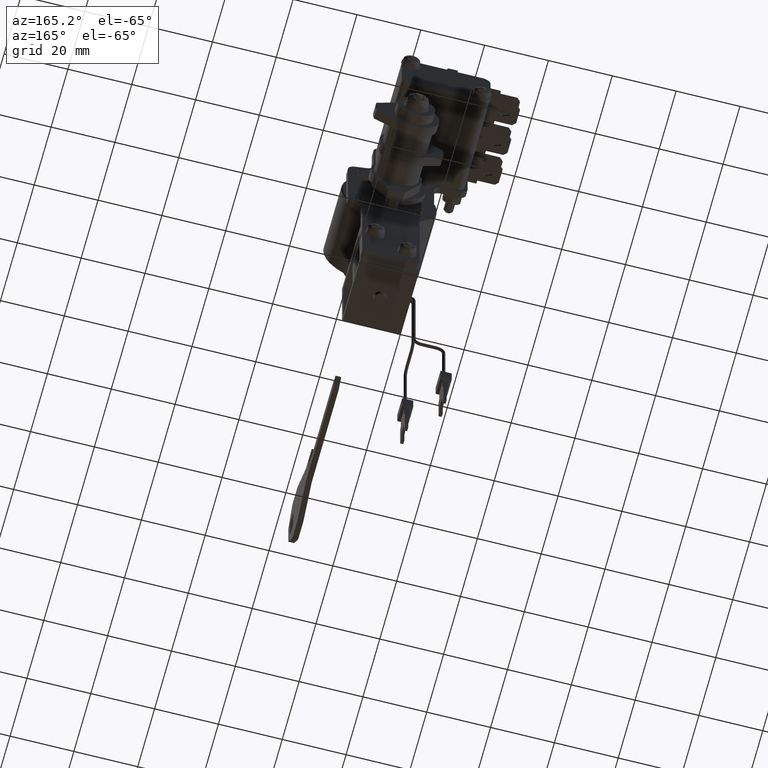
[diagram: clean part render]
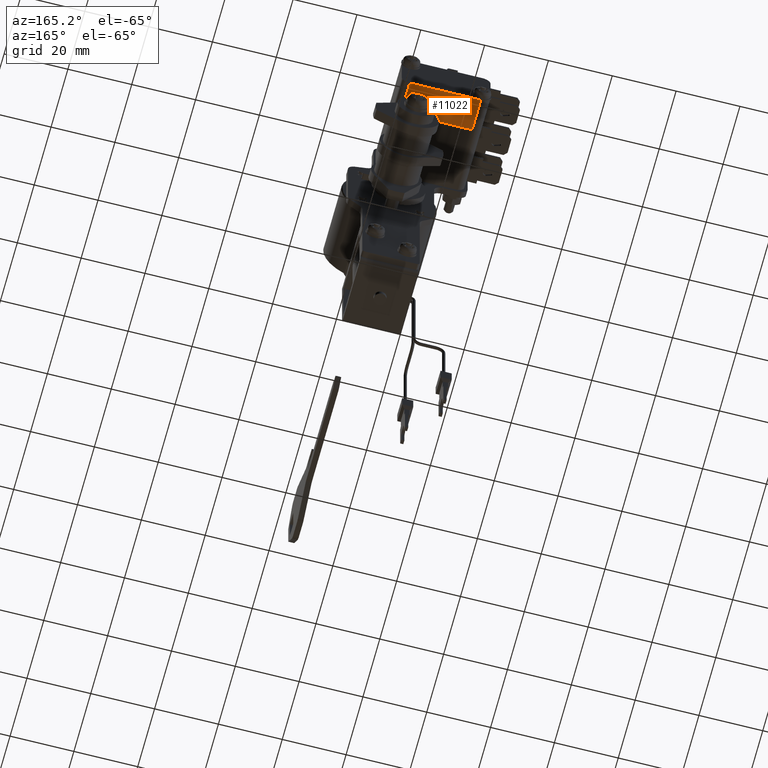
[diagram: same view with one face highlighted and labeled with its STEP entity id]
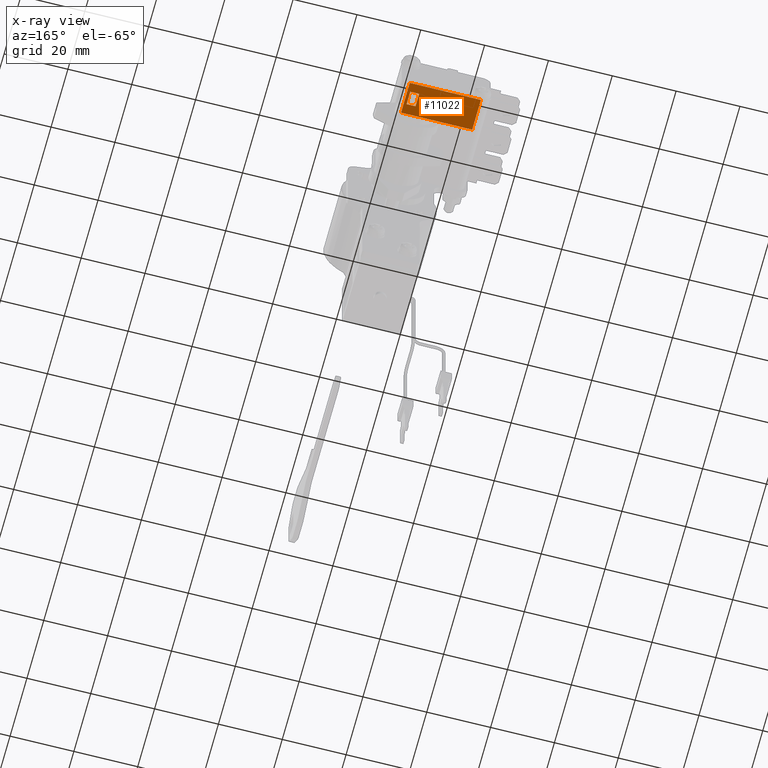
[diagram: x-ray of the same camera — body ghosted, the highlighted face saturated]
A machine part, auxiliary view. The second image highlights one B-rep face of the part: STEP entity #11022.
The next image is the same camera in x-ray: the body ghosted, the highlighted face saturated — about 0% of this face is hidden behind the body in this view.
In plain terms, the highlighted face is a freeform B-spline surface patch.
Its self-contained STEP definition (entity closure, byte-faithful):
#8984=CARTESIAN_POINT('',(32.200000000000003,-1.400000000000090,14.0));
#8985=VERTEX_POINT('',#8984);
#8993=CARTESIAN_POINT('',(32.200000000000003,1.399999999999864,14.0));
#8994=VERTEX_POINT('',#8993);
#8995=CARTESIAN_POINT('',(32.200000000000003,1.399999999999864,14.0));
#8996=CARTESIAN_POINT('',(32.200000000000003,-1.400000000000090,14.0));
#8997=QUASI_UNIFORM_CURVE('',1,(#8995,#8996),.UNSPECIFIED.,.F.,.U.);
#8998=EDGE_CURVE('',#8994,#8985,#8997,.T.);
#9050=CARTESIAN_POINT('',(36.500000000000000,-1.400000000000090,14.0));
#9051=VERTEX_POINT('',#9050);
#9096=CARTESIAN_POINT('',(36.500000000000000,1.399999999999864,14.0));
#9097=VERTEX_POINT('',#9096);
#9103=CARTESIAN_POINT('',(36.500000000000000,1.399999999999864,14.0));
#9104=CARTESIAN_POINT('',(36.500000000000000,-1.400000000000090,14.0));
#9105=QUASI_UNIFORM_CURVE('',1,(#9103,#9104),.UNSPECIFIED.,.F.,.U.);
#9106=EDGE_CURVE('',#9097,#9051,#9105,.T.);
#9117=CARTESIAN_POINT('',(36.500000000000000,1.399999999999864,14.0));
#9118=CARTESIAN_POINT('',(32.200000000000003,1.399999999999864,14.0));
#9119=QUASI_UNIFORM_CURVE('',1,(#9117,#9118),.UNSPECIFIED.,.F.,.U.);
#9120=EDGE_CURVE('',#9097,#8994,#9119,.T.);
#9205=CARTESIAN_POINT('',(36.500000000000000,-1.400000000000090,14.0));
#9206=CARTESIAN_POINT('',(32.200000000000003,-1.400000000000090,14.0));
#9207=QUASI_UNIFORM_CURVE('',1,(#9205,#9206),.UNSPECIFIED.,.F.,.U.);
#9208=EDGE_CURVE('',#9051,#8985,#9207,.T.);
#10751=CARTESIAN_POINT('',(29.0,20.0,14.0));
#10752=VERTEX_POINT('',#10751);
#10766=CARTESIAN_POINT('',(29.0,-2.300000000000000,14.0));
#10767=VERTEX_POINT('',#10766);
#10768=CARTESIAN_POINT('',(29.0,20.0,14.0));
#10769=CARTESIAN_POINT('',(29.0,-2.300000000000000,14.0));
#10770=QUASI_UNIFORM_CURVE('',1,(#10768,#10769),.UNSPECIFIED.,.F.,.U.);
#10771=EDGE_CURVE('',#10752,#10767,#10770,.T.);
#10859=CARTESIAN_POINT('',(39.299999999999997,-2.300000000000000,14.0));
#10860=VERTEX_POINT('',#10859);
#10874=CARTESIAN_POINT('',(39.299999999999997,20.0,14.0));
#10875=VERTEX_POINT('',#10874);
#10876=CARTESIAN_POINT('',(39.299999999999997,20.0,14.0));
#10877=CARTESIAN_POINT('',(39.299999999999997,-2.300000000000000,14.0));
#10878=QUASI_UNIFORM_CURVE('',1,(#10876,#10877),.UNSPECIFIED.,.F.,.U.);
#10879=EDGE_CURVE('',#10875,#10860,#10878,.T.);
#10991=CARTESIAN_POINT('',(39.299999999999997,-2.300000000000000,14.0));
#10992=CARTESIAN_POINT('',(29.0,-2.300000000000000,14.0));
#10993=QUASI_UNIFORM_CURVE('',1,(#10991,#10992),.UNSPECIFIED.,.F.,.U.);
#10994=EDGE_CURVE('',#10860,#10767,#10993,.T.);
#11001=CARTESIAN_POINT('',(28.485515056762232,-3.413884956778271,14.0));
#11002=CARTESIAN_POINT('',(28.485515056762232,21.113885554910880,14.0));
#11003=CARTESIAN_POINT('',(39.814484482791897,-3.413884956778271,14.0));
#11004=CARTESIAN_POINT('',(39.814484482791897,21.113885554910880,14.0));
#11005=B_SPLINE_SURFACE_WITH_KNOTS('',1,1,((#11001,#11003),(#11002,#11004)),.UNSPECIFIED.,.F.,.F.,.U.,(2,2),(2,2),(0.0,24.527770511689159),(0.0,11.328969426029669),.UNSPECIFIED.);
#11006=ORIENTED_EDGE('',*,*,#10771,.F.);
#11007=CARTESIAN_POINT('',(39.299999999999997,20.0,14.0));
#11008=CARTESIAN_POINT('',(29.0,20.0,14.0));
#11009=QUASI_UNIFORM_CURVE('',1,(#11007,#11008),.UNSPECIFIED.,.F.,.U.);
#11010=EDGE_CURVE('',#10875,#10752,#11009,.T.);
#11011=ORIENTED_EDGE('',*,*,#11010,.F.);
#11012=ORIENTED_EDGE('',*,*,#10879,.T.);
#11013=ORIENTED_EDGE('',*,*,#10994,.T.);
#11014=EDGE_LOOP('',(#11006,#11011,#11012,#11013));
#11015=FACE_OUTER_BOUND('',#11014,.T.);
#11016=ORIENTED_EDGE('',*,*,#9106,.F.);
#11017=ORIENTED_EDGE('',*,*,#9120,.T.);
#11018=ORIENTED_EDGE('',*,*,#8998,.T.);
#11019=ORIENTED_EDGE('',*,*,#9208,.F.);
#11020=EDGE_LOOP('',(#11016,#11017,#11018,#11019));
#11021=FACE_BOUND('',#11020,.T.);
#11022=ADVANCED_FACE('',(#11015,#11021),#11005,.T.);